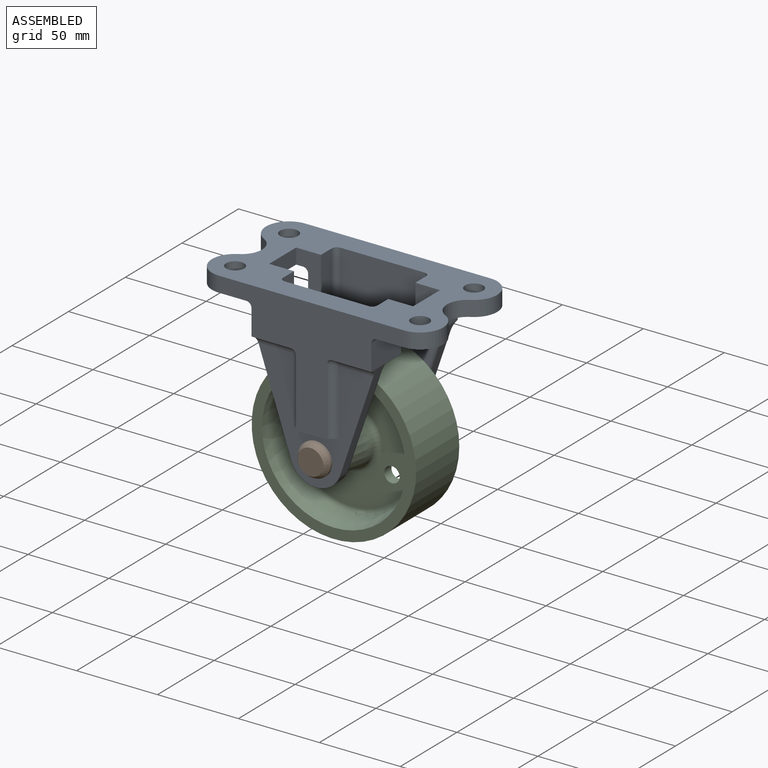
[diagram: assembled view]
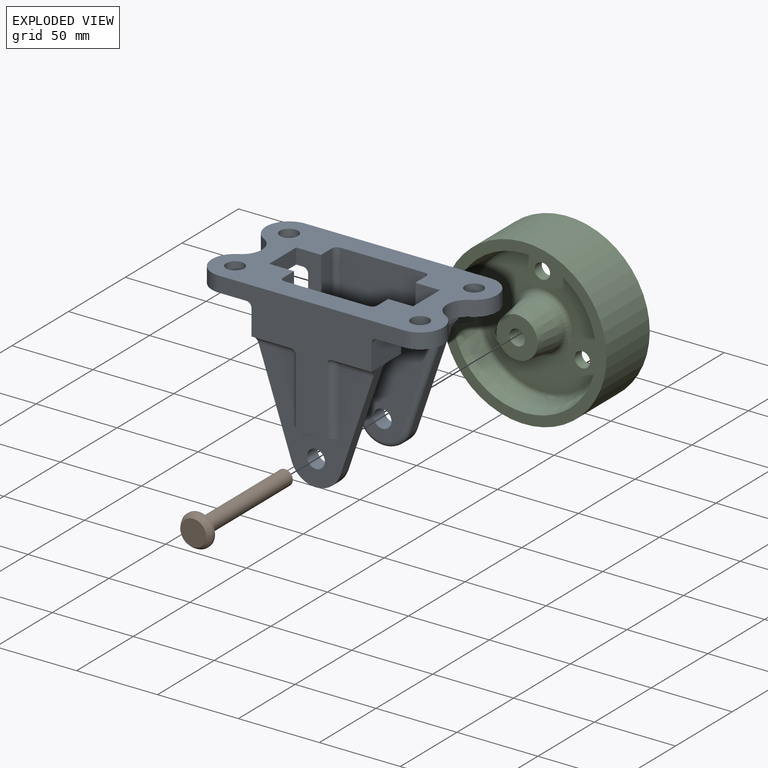
[diagram: exploded view]
GUIDED TOUR — MATED ASSEMBLY (Onshape document 25bc2c73ca1973fb7916df8c, AutoMate assembly 25bc2c73ca1973fb7916df8c_6830af093a34dd13fd95c5c6_f67e9b7ae7b09203bd7ca06a_default)

This assembly has 3 components, labeled P0..P2 below (a component is one placed occurrence of a part; the same part can appear more than once), held together by 2 mates. A mate is a constraint between two components; its type names the relative motion it leaves free:
  CYLINDRICAL — leaves both rotation about and translation along the listed axis free,
  FASTENED — locks the two components together rigidly (no relative motion).
Axis/direction vectors are unit vectors and 'through' points are millimeter coordinates, both in the assembly's world frame.

MATES
  1. CYLINDRICAL "Cylindrical 1": P1 <-> P0, axis (0.000, -1.000, 0.000) through (-29.75, 32.28, -0.12) mm
  2. FASTENED "Fastened 1": P2 <-> P0, direction (0.000, -1.000, 0.000) through (-29.75, 41.80, -0.12) mm

ASSEMBLY ORDER
  1. P0 — the base component [order verified]
  2. P2 [order verified]
  3. P1 [order verified]
Order-tag legend:
  [order verified] — this step's position reverses a verified removal order: the component was checked to insert without passing through the ones already placed.

Of the 3 components, 1 carries the full construction recipe — the FeatureScript program that regenerates the part's solid from scratch; the rest are supplied as boundary geometry only.
Each toured component is shown spotlighted twice — in the assembled view, then in the exploded view, where a leader line traces a displaced component back to its assembled socket (saturated green if recipe-attached, orange if geometry-only; every other component desaturated gray) — followed by its recipe or geometry summary and the mates that hold it.
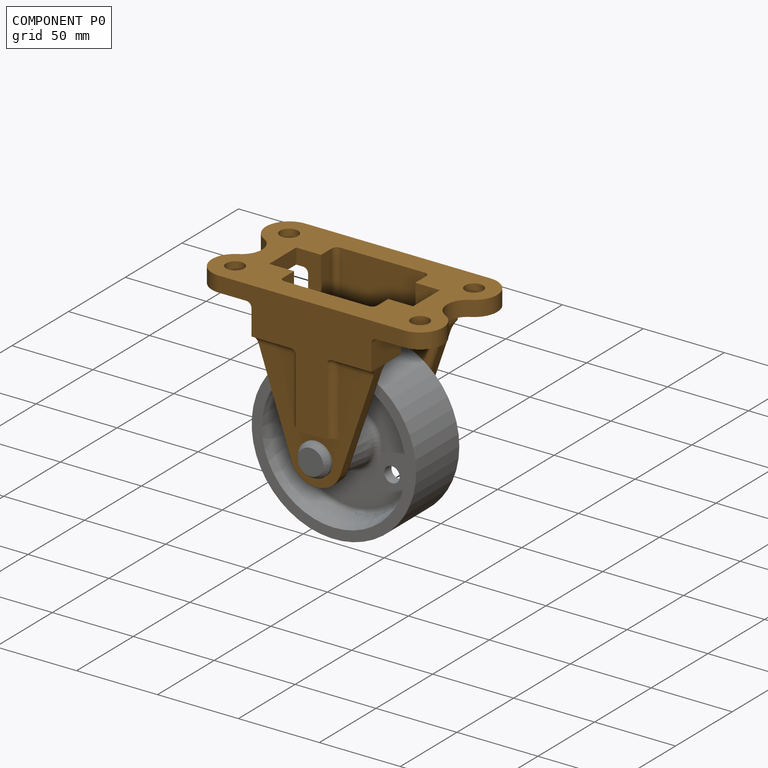
[diagram: component P0 — assembled]
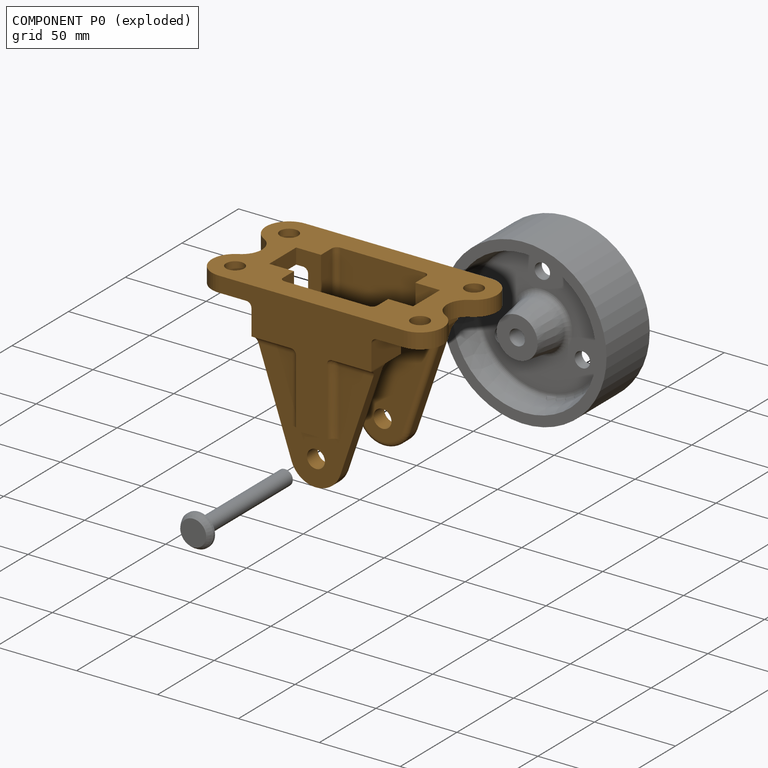
[diagram: component P0 — exploded]
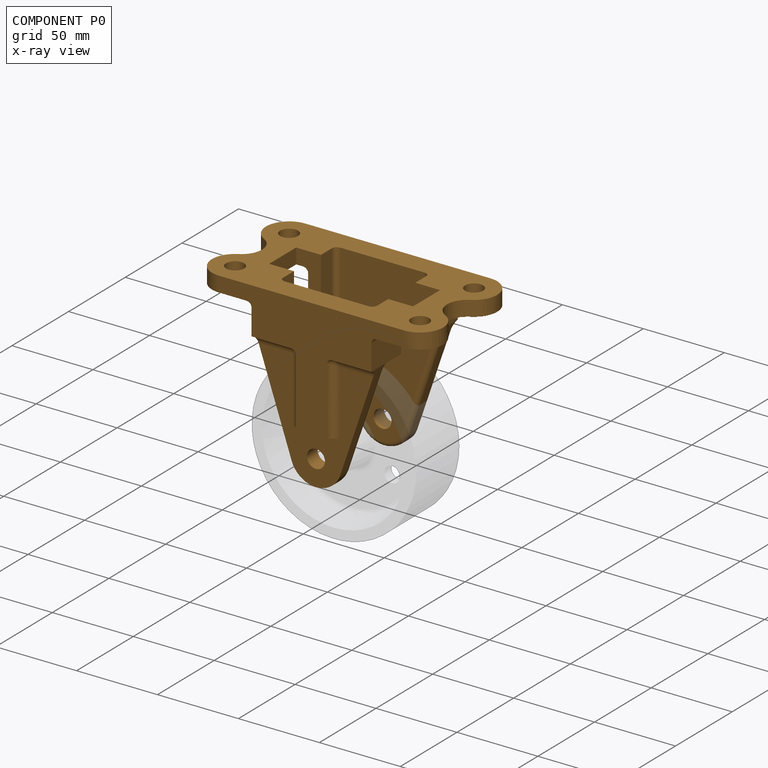
[diagram: component P0 — x-ray view]
COMPONENT P0 — geometry summary (no construction recipe available for this part):
  bounding box: 143.5 x 106.4 x 76.8 mm
  B-rep topology: 1 solid, 107 faces, 600 edges
  volume: 178726 mm^3 (15% of its bounding box)
  symmetry: 2-fold rotationally symmetric about the z axis; mirror-symmetric across its x mid-plane, y mid-plane
Held by: CYLINDRICAL mate "Cylindrical 1" to P1; FASTENED mate "Fastened 1" to P2.
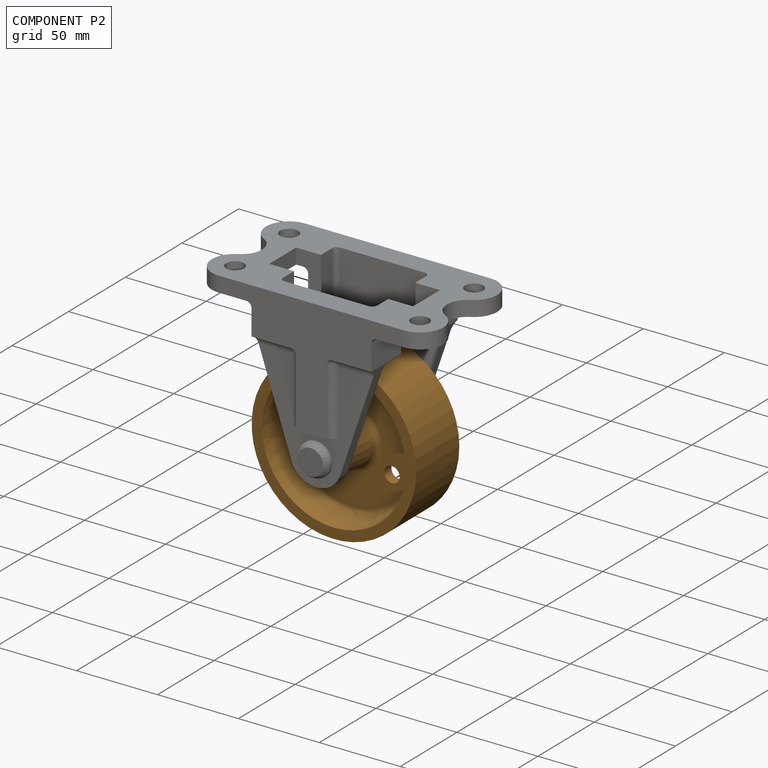
[diagram: component P2 — assembled]
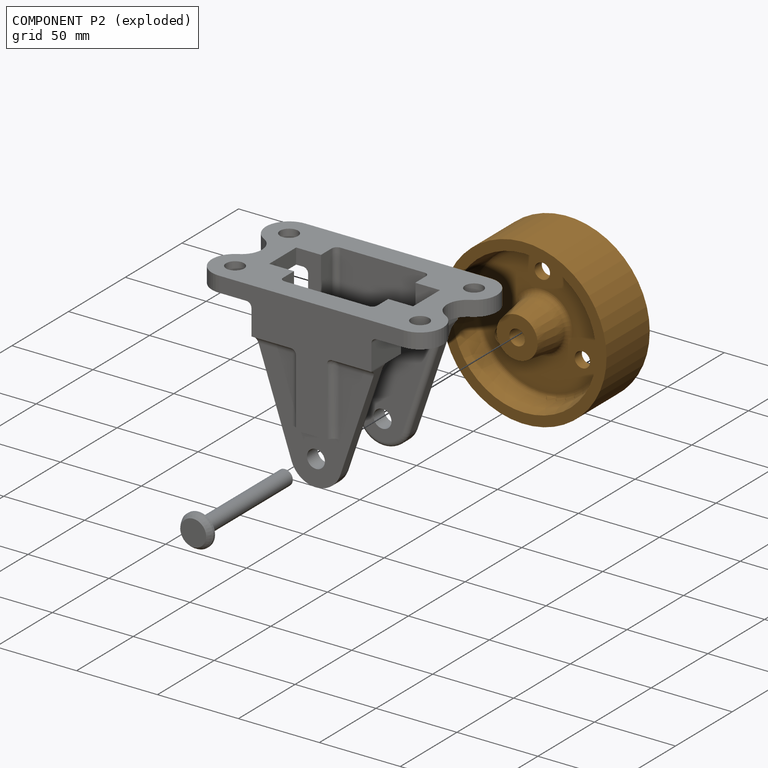
[diagram: component P2 — exploded]
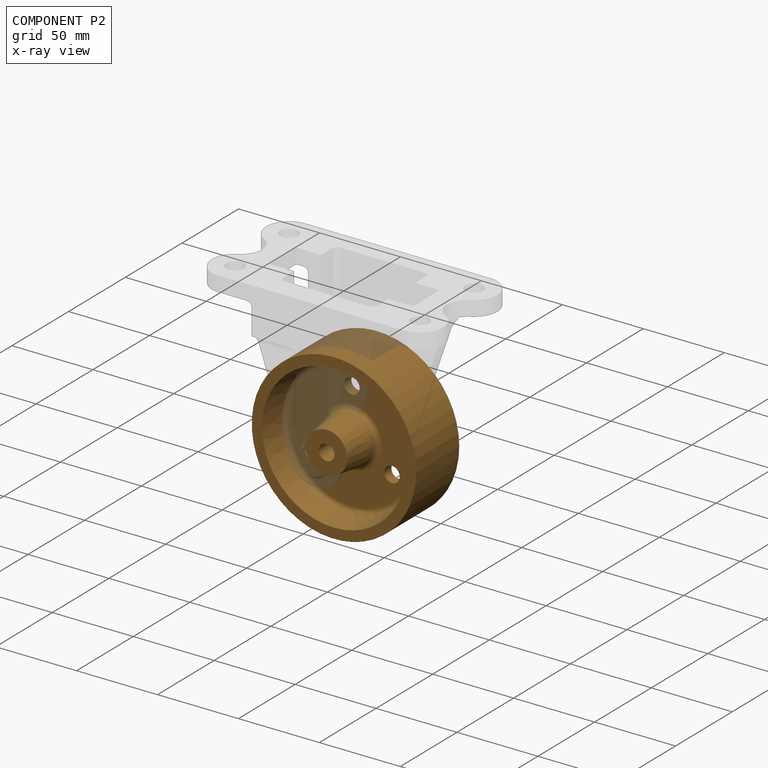
[diagram: component P2 — x-ray view]
COMPONENT P2 — geometry summary (no construction recipe available for this part):
  bounding box: 101.6 x 101.6 x 50.8 mm
  B-rep topology: 1 solid, 19 faces, 76 edges
  volume: 150108 mm^3 (29% of its bounding box)
  symmetry: 2-fold rotationally symmetric about the y axis; 3-fold rotationally symmetric about the z axis; mirror-symmetric across its x mid-plane, z mid-plane
Held by: FASTENED mate "Fastened 1" to P0.
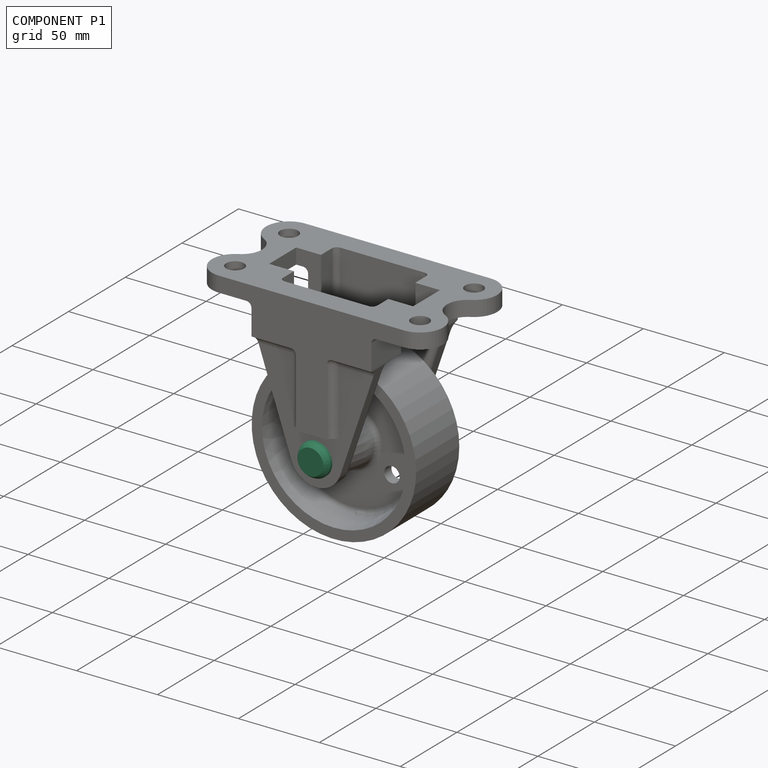
[diagram: component P1 — assembled]
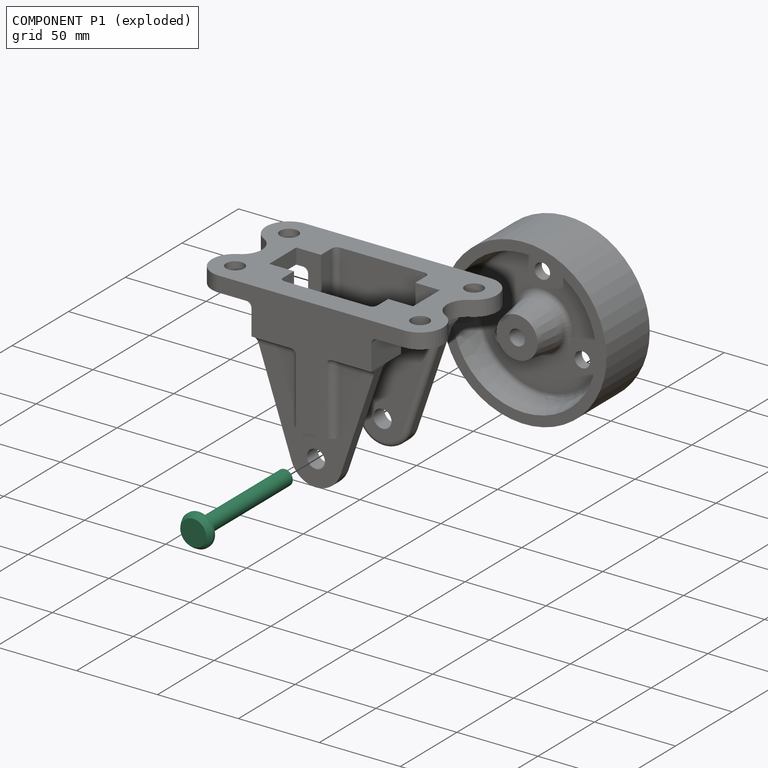
[diagram: component P1 — exploded]
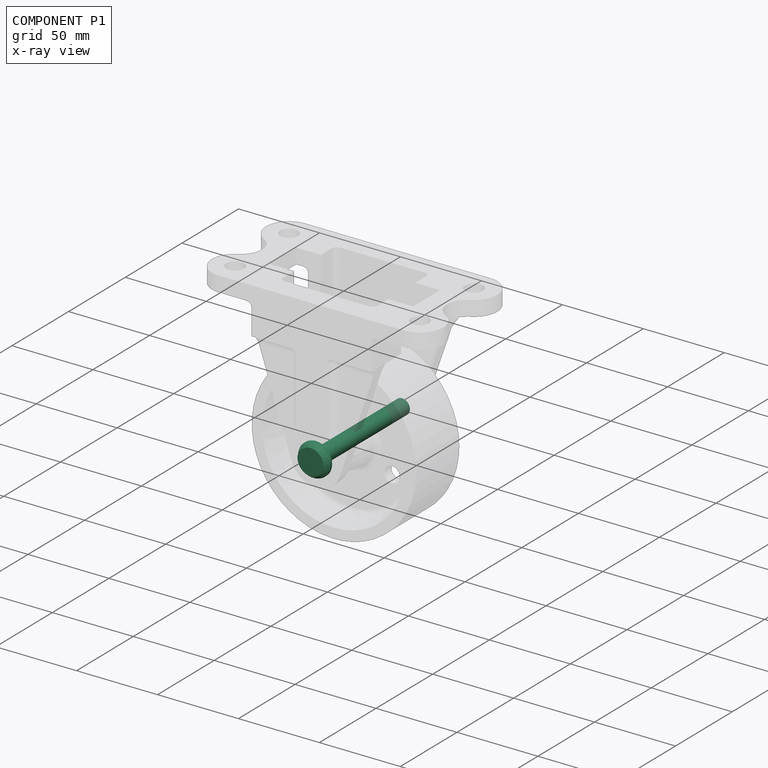
[diagram: component P1 — x-ray view]
COMPONENT P1 — recipe-attached (CADFS 00244242, mesh-verified: the recipe's output STEP matches this component's geometry to below the mesh-comparison resolution (tessellation chordal tolerance ~0.128 mm)).
Held by: CYLINDRICAL mate "Cylindrical 1" to P0.
Construction recipe (FeatureScript — the CAD program that rebuilds this solid; sketch coordinates are in the units given by the * unit suffixes, e.g. mm):

FeatureScript 1511;
import(path : "onshape/std/geometry.fs", version : "1511.0");
import(path : "onshape/std/common.fs", version : "1511.0");
const mm = millimeter;
const VERTEX = EntityType.VERTEX;
const EDGE = EntityType.EDGE;
const FACE = EntityType.FACE;
const BODY = EntityType.BODY;
function v(x, y){return vector(x, y);}
function OD(order){return orderDisambiguation(order);}
function OSD(set){return originalSetDisambiguation(set);}
function TD(topology){return topologyDisambiguation(topology);}
function TDD(query){return trueDependencyDisambiguation(query);}
function sQuery(a, b, c) {return sketchEntityQuery(a, b, c);}

annotation { "Feature Type Name" : "Feature", "Feature Type Description" : "" }
export const myFeature = defineFeature(function(context is Context, id is Id, definition is map)
    precondition{}
    {
        {
            var Q0;
            Q0=qCreatedBy(makeId("Front.planeOp"),FACE);
            var sketch = newSketch(context, id + "F0", { "sketchPlane" : qUnion([Q0])});
            skLineSegment(sketch, "E0.bottom", {"start": v(-52.41, 0) * mm, "end": v(23.79, 0) * mm});
            skLineSegment(sketch, "E0.top", {"start": v(-52.41, 4.76) * mm, "end": v(23.79, 4.76) * mm});
            skLineSegment(sketch, "E0.right", {"start": v(23.79, 0) * mm, "end": v(23.79, 4.76) * mm});
            skLineSegment(sketch, "E1.bottom", {"start": v(-52.41, 0) * mm, "end": v(-54, 0) * mm});
            skLineSegment(sketch, "E1.left", {"start": v(-52.41, 4.76) * mm, "end": v(-52.41, 7.94) * mm});
            skLineSegment(sketch, "E2.bottom", {"start": v(-52.41, 0) * mm, "end": v(-57.18, 0) * mm});
            skLineSegment(sketch, "E2.right", {"start": v(-57.18, 0) * mm, "end": v(-57.18, 7.94) * mm});
            skLineSegment(sketch, "E3", {"start": v(-54, 7.94) * mm, "end": v(-54, 10.11) * mm});
            skLineSegment(sketch, "E4", {"start": v(-52.41, 7.94) * mm, "end": v(-52.41, 10.11) * mm});
            skLineSegment(sketch, "E5", {"start": v(-54, 10.11) * mm, "end": v(-52.41, 10.11) * mm});
            skPoint(sketch, "E6.start.orphan", {"position": v(-54, 10.7) * mm});
            skArc(sketch, "E7.trimOffspring", {"start": v(-54, 10.11) * mm, "mid": v(-55.68, 9.16) * mm, "end": v(-57.18, 7.94) * mm});
            skLineSegment(sketch, "E8", {"start": v(-54, 7.94) * mm, "end": v(-54, 0) * mm});
            skSolve(sketch);
        }
        {
            var Q0;
            {var subQ0=sQuery(id+"F0.wireOp",EDGE,"E2.right");Q0=makeQuery(id+"F0.imprint","IMPRINT",FACE,{"disambiguationData":[TD([[makeQuery(id+"F0.imprint","IMPRINT",EDGE,{"derivedFrom":subQ0}),-1.0]])]});}
            var Q1;
            {var subQ1=sQuery(id+"F0.wireOp",EDGE,"E0.bottom");Q1=makeQuery(id+"F0.imprint","IMPRINT",FACE,{"disambiguationData":[TD([[makeQuery(id+"F0.imprint","IMPRINT",EDGE,{"derivedFrom":subQ1}),1.0]])]});}
            var Q2;
            Q2=sQuery(id+"F0.wireOp",EDGE,"E0.bottom");
            revolve(context, id + "F1", {"entities" : qUnion([Q0, Q1]), "axis" : qUnion([Q2]), "revolveType" : RevolveType.FULL});
        }
        {
            var Q0;
            Q0=makeQuery(id+"F1.opRevolve","SWEPT_FACE",FACE,{"disambiguationData":[OSD([sQuery(id+"F0.wireOp",EDGE,"E1.left"),sQuery(id+"F0.wireOp",EDGE,"E4")])]});
            var sketch = newSketch(context, id + "F2", { "sketchPlane" : qUnion([Q0])});
            skLineSegment(sketch, "E9.bottom", {"start": v(-5.65, 8.39) * mm, "end": v(6.31, 8.39) * mm});
            skLineSegment(sketch, "E9.top", {"start": v(-5.65, 10.42) * mm, "end": v(6.31, 10.42) * mm});
            skLineSegment(sketch, "E9.left", {"start": v(-5.65, 8.39) * mm, "end": v(-5.65, 10.42) * mm});
            skLineSegment(sketch, "E9.right", {"start": v(6.31, 8.39) * mm, "end": v(6.31, 10.42) * mm});
            skSolve(sketch);
        }
        {
            var Q0;
            {var subQ0=sQuery(id+"F2.wireOp",EDGE,"E9.bottom");var subQ1=makeQuery(id+"F1.opRevolve","SWEPT_EDGE",EDGE,{"disambiguationData":[OSD([sQuery(id+"F0.wireOp",EDGE,"E4"),sQuery(id+"F0.wireOp",EDGE,"E5")])]});var subQ3=makeQuery(id+"F2.imprint","INTERSECT",VERTEX,{"derivedFrom":[subQ1,subQ0]});Q0=makeQuery(id+"F2.imprint","IMPRINT",FACE,{"disambiguationData":[TD([[makeQuery(id+"F2.imprint","IMPRINT",EDGE,{"disambiguationData":[TD([[subQ3,1.0]])],"derivedFrom":subQ0}),1.0]])]});}
            extrude(context, id + "F3", {"entities" : qUnion([Q0]), "operationType" : NewBodyOperationType.REMOVE, "oppositeDirection" : true, "depth" : 25.4 * mm});
        }
    });
PROVENANCE & LICENSES
Assembly (occurrences, transforms, mates, per-part STEP geometry): AutoMate dataset, Zenodo record 7776208, CC0.
Construction recipes: CADFS (HuggingFace VladPyatov/CADFS, CC-BY-4.0, layered over the ABC dataset), FeatureScript reconstruction programs keyed by ABC model id.
Join: ABC meta listings map ABC model id -> Onshape documentId; within a shared document, parts are matched by geometric signature (bounding-box dims + volume at 0.1% relative tolerance, exact B-rep face/solid counts).
Verification: 1 of this assembly's 3 components carries a recipe attachment, and every attachment is mesh-verified: the CADFS STEP and the AutoMate member STEP were compared as meshes in their shared local frame (symmetric sampled-point-to-mesh distance); worst across the 1 attachment: below the mesh-comparison resolution (tessellation chordal tolerance ~0.128 mm) on a 85 mm part.
Renders: orthographic iso camera (az 35 / el 25); the floor grid conveys scale (grid pitch printed in each image; no ruler). In the exploded view each component is displaced by its stored offset vector: the offsets alone carry the explosion direction (mate normal/axis signs are not orientation cues and do not encode it), and separation distances are assigned per mate-chain, not proportionally to assembly-order depth.
